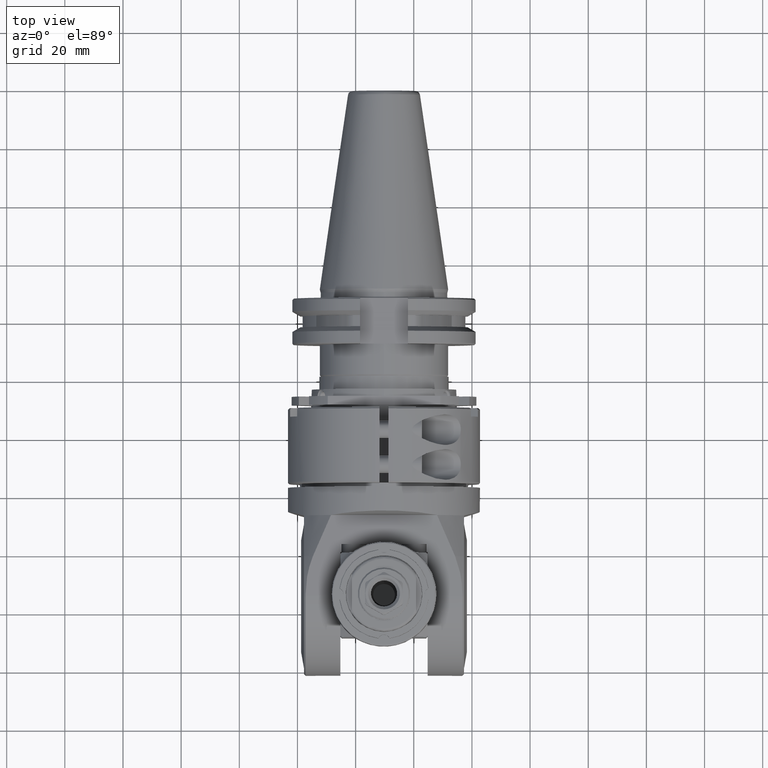
[diagram: clean part render]
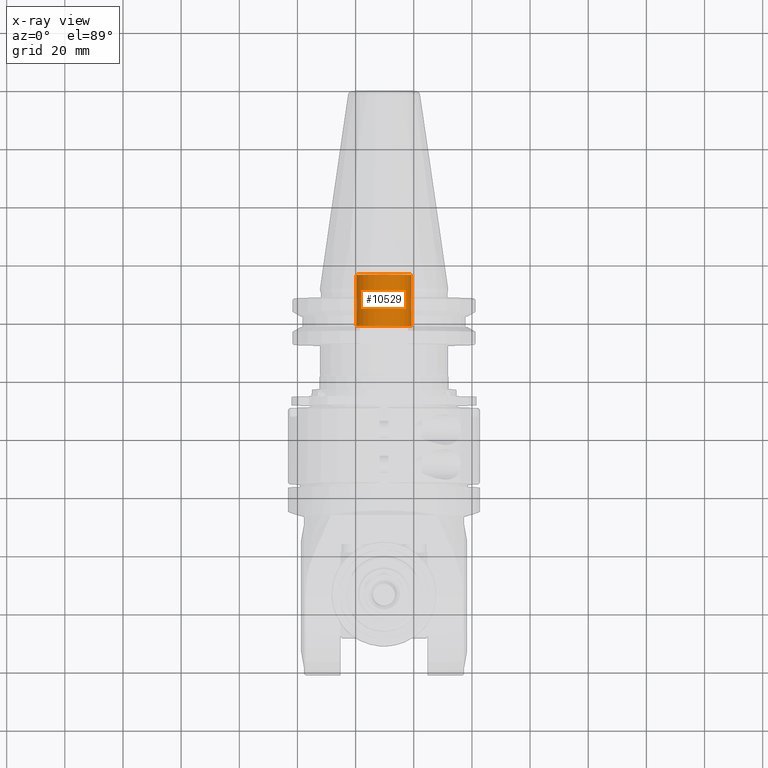
[diagram: x-ray — body ghosted, one internal face saturated and labeled with its STEP entity id]
A machine part, top view, then the same camera in x-ray: the body is ghosted and one INTERNAL B-rep face — a face not visible from any outside direction — is saturated and labeled: STEP entity #10529.
In plain terms, the highlighted cylindrical surface (bore or boss wall) has radius 9.5 mm, axis along (0, -1, 0).
Its self-contained STEP definition (entity closure, byte-faithful):
#1151=LINE('',#20135,#1987);
#1987=VECTOR('',#14691,9.5);
#2152=CYLINDRICAL_SURFACE('',#11669,9.5);
#2835=FACE_OUTER_BOUND('',#3529,.T.);
#3529=EDGE_LOOP('',(#9499,#9500,#9501,#9502));
#4036=CIRCLE('',#11668,9.5);
#4037=CIRCLE('',#11670,9.5);
#5022=VERTEX_POINT('',#20130);
#5023=VERTEX_POINT('',#20134);
#6523=EDGE_CURVE('',#5022,#5022,#4036,.T.);
#6524=EDGE_CURVE('',#5022,#5023,#1151,.T.);
#6525=EDGE_CURVE('',#5023,#5023,#4037,.T.);
#9499=ORIENTED_EDGE('',*,*,#6523,.F.);
#9500=ORIENTED_EDGE('',*,*,#6524,.T.);
#9501=ORIENTED_EDGE('',*,*,#6525,.F.);
#9502=ORIENTED_EDGE('',*,*,#6524,.F.);
#10529=ADVANCED_FACE('',(#2835),#2152,.F.);
#11668=AXIS2_PLACEMENT_3D('',#20132,#14687,#14688);
#11669=AXIS2_PLACEMENT_3D('',#20133,#14689,#14690);
#11670=AXIS2_PLACEMENT_3D('',#20136,#14692,#14693);
#14687=DIRECTION('center_axis',(0.,-1.,0.));
#14688=DIRECTION('ref_axis',(1.,0.,0.));
#14689=DIRECTION('center_axis',(0.,-1.,0.));
#14690=DIRECTION('ref_axis',(-1.,0.,0.));
#14691=DIRECTION('',(0.,-1.,0.));
#14692=DIRECTION('center_axis',(0.,1.,0.));
#14693=DIRECTION('ref_axis',(1.,0.,0.));
#20130=CARTESIAN_POINT('',(9.50000000000007,72.0000000446601,1.16341445918999E-15));
#20132=CARTESIAN_POINT('Origin',(0.,72.00000004466,0.));
#20133=CARTESIAN_POINT('Origin',(0.,63.25000004466,0.));
#20134=CARTESIAN_POINT('',(9.5,54.50000004466,0.));
#20135=CARTESIAN_POINT('',(9.5,63.25000004466,1.16341445918999E-15));
#20136=CARTESIAN_POINT('Origin',(0.,54.50000004466,0.));